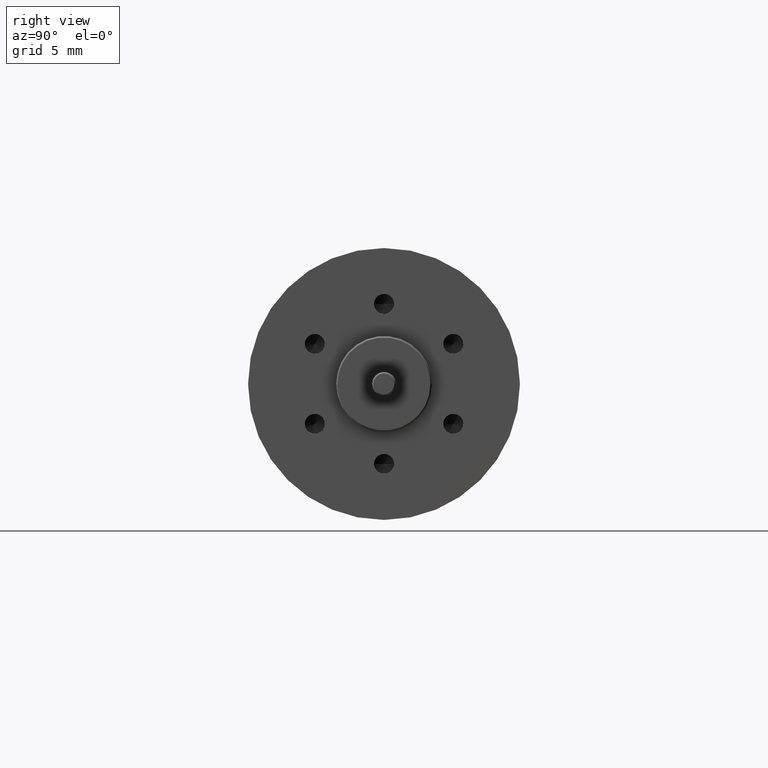
[diagram: clean part render]
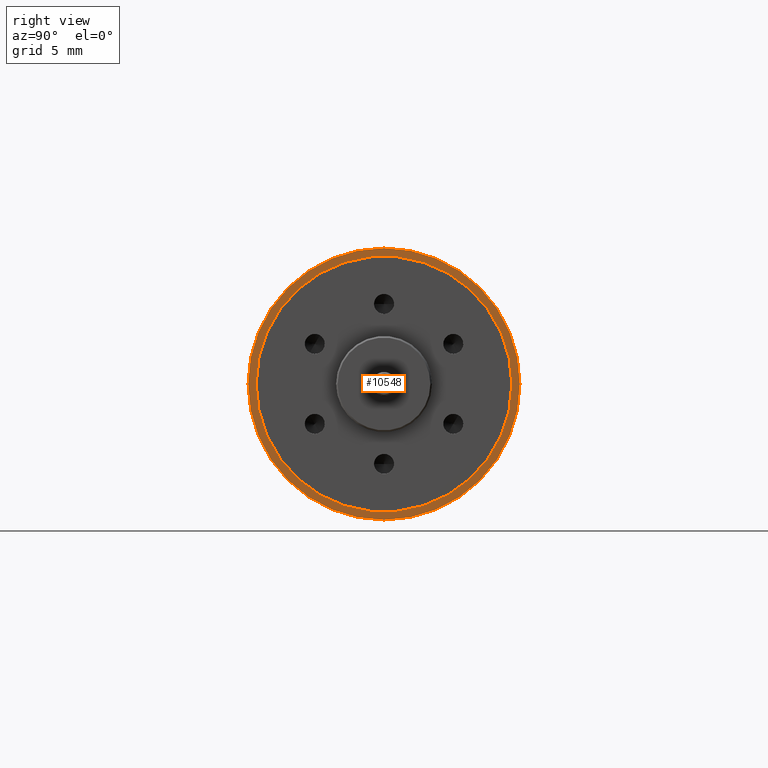
[diagram: same view with one face highlighted and labeled with its STEP entity id]
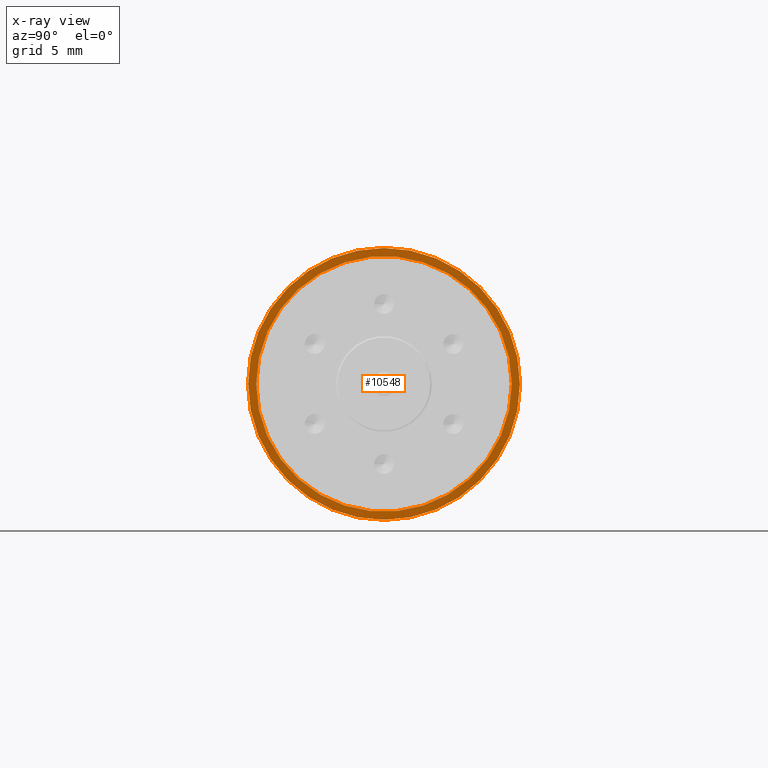
[diagram: x-ray of the same camera — body ghosted, the highlighted face saturated]
A machine part, right view. The second image highlights one B-rep face of the part: STEP entity #10548.
The next image is the same camera in x-ray: the body ghosted, the highlighted face saturated — about 0% of this face is hidden behind the body in this view.
In plain terms, the highlighted planar face has unit normal (-1, 0, 0).
Its self-contained STEP definition (entity closure, byte-faithful):
#3536=CARTESIAN_POINT('',(-2.8E0,0.E0,0.E0));
#3537=DIRECTION('',(1.E0,0.E0,0.E0));
#3538=DIRECTION('',(0.E0,1.E0,0.E0));
#3539=AXIS2_PLACEMENT_3D('',#3536,#3537,#3538);
#3545=CARTESIAN_POINT('',(-2.8E0,0.E0,0.E0));
#3546=DIRECTION('',(-1.E0,0.E0,0.E0));
#3547=DIRECTION('',(0.E0,1.E0,0.E0));
#3548=AXIS2_PLACEMENT_3D('',#3545,#3546,#3547);
#3550=CARTESIAN_POINT('',(-2.8E0,0.E0,0.E0));
#3551=DIRECTION('',(-1.E0,0.E0,0.E0));
#3552=DIRECTION('',(0.E0,1.E0,0.E0));
#3553=AXIS2_PLACEMENT_3D('',#3550,#3551,#3552);
#3555=CARTESIAN_POINT('',(-2.8E0,0.E0,0.E0));
#3556=DIRECTION('',(1.E0,0.E0,0.E0));
#3557=DIRECTION('',(0.E0,1.E0,0.E0));
#3558=AXIS2_PLACEMENT_3D('',#3555,#3556,#3557);
#4142=CARTESIAN_POINT('',(-2.8E0,8.5E0,0.E0));
#4144=VERTEX_POINT('',#4142);
#4146=CARTESIAN_POINT('',(-2.8E0,-8.5E0,0.E0));
#4148=VERTEX_POINT('',#4146);
#5357=CARTESIAN_POINT('',(-2.8E0,7.9925E0,0.E0));
#5359=VERTEX_POINT('',#5357);
#5361=CARTESIAN_POINT('',(-2.8E0,-7.9925E0,0.E0));
#5363=VERTEX_POINT('',#5361);
#10533=CARTESIAN_POINT('',(-2.8E0,0.E0,0.E0));
#10534=DIRECTION('',(-1.E0,0.E0,0.E0));
#10535=DIRECTION('',(0.E0,1.E0,0.E0));
#10536=AXIS2_PLACEMENT_3D('',#10533,#10534,#10535);
#10537=PLANE('',#10536);
#10538=ORIENTED_EDGE('',*,*,#10512,.F.);
#10539=ORIENTED_EDGE('',*,*,#10528,.T.);
#10540=EDGE_LOOP('',(#10538,#10539));
#10541=FACE_OUTER_BOUND('',#10540,.F.);
#10543=ORIENTED_EDGE('',*,*,#10542,.F.);
#10545=ORIENTED_EDGE('',*,*,#10544,.T.);
#10546=EDGE_LOOP('',(#10543,#10545));
#10547=FACE_BOUND('',#10546,.F.);
#10548=ADVANCED_FACE('',(#10541,#10547),#10537,.F.);
#3540=CIRCLE('',#3539,8.5E0);
#3549=CIRCLE('',#3548,8.5E0);
#3554=CIRCLE('',#3553,7.9925E0);
#3559=CIRCLE('',#3558,7.9925E0);
#10512=EDGE_CURVE('',#4144,#4148,#3540,.T.);
#10528=EDGE_CURVE('',#4144,#4148,#3549,.T.);
#10542=EDGE_CURVE('',#5359,#5363,#3554,.T.);
#10544=EDGE_CURVE('',#5359,#5363,#3559,.T.);